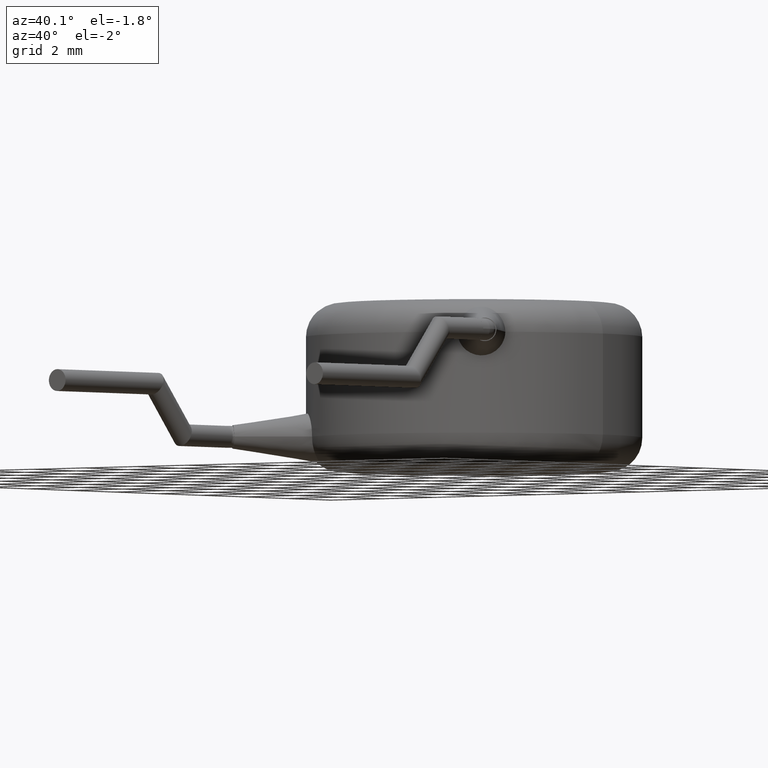
[diagram: clean part render]
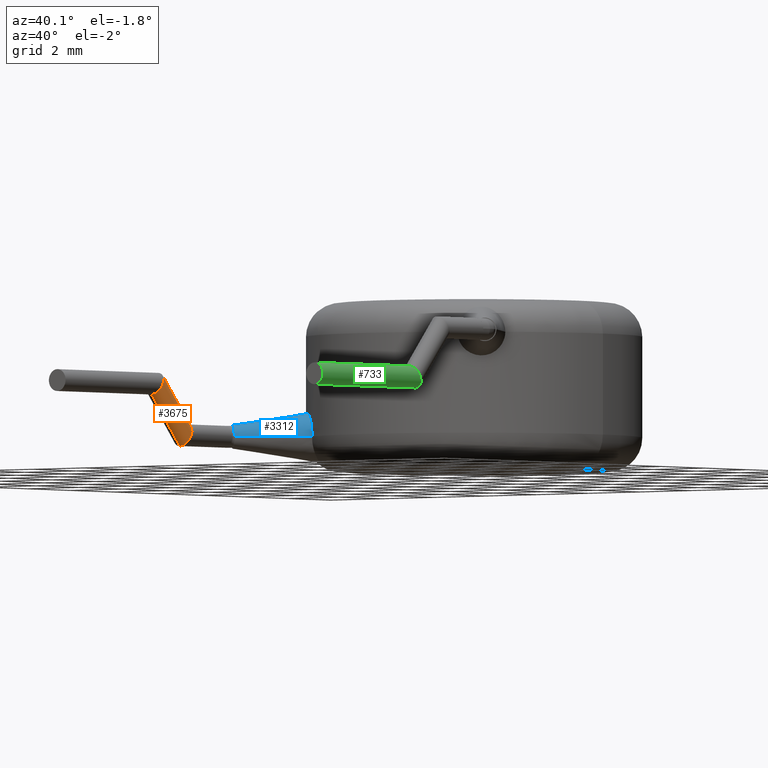
[diagram: same view with three faces highlighted in distinct colors, each labeled with its STEP entity id]
A machine part, auxiliary view with three faces highlighted in distinct colors.
Their STEP definitions:

[orange] entity #3675 — the highlighted cylindrical surface (edge-blend (fillet) strip) has radius 0.325 mm, axis along (0, -0.6549, 0.7557).
#10 = ORIENTED_EDGE ( 'NONE', *, *, #3588, .T. ) ;
#20 = VECTOR ( 'NONE', #952, 1000.000000000000000 ) ;
#30 = CARTESIAN_POINT ( 'NONE',  ( -5.000000000000000000, -8.651595613105618200, 2.824999999999999700 ) ) ;
#101 = CARTESIAN_POINT ( 'NONE',  ( -4.349999999999997000, -7.351595613105617500, 1.325000000000001500 ) ) ;
#182 = CARTESIAN_POINT ( 'NONE',  ( -5.000000000000000900, -7.351595613105617500, 1.324999999999999700 ) ) ;
#184 = CARTESIAN_POINT ( 'NONE',  ( -5.000000000000000900, -7.351595613105617500, 1.324999999999999700 ) ) ;
#297 = EDGE_LOOP ( 'NONE', ( #528, #10, #2083, #2383 ) ) ;
#528 = ORIENTED_EDGE ( 'NONE', *, *, #3630, .T. ) ;
#821 = AXIS2_PLACEMENT_3D ( 'NONE', #1191, #2173, #2827 ) ;
#949 = LINE ( 'NONE', #2413, #20 ) ;
#952 = DIRECTION ( 'NONE',  ( 0.0000000000000000000, -0.6549305384178419900, 0.7556890827898176100 ) ) ;
#1191 = CARTESIAN_POINT ( 'NONE',  ( -5.000000000000000000, -7.500000000000000000, 0.9999999999999997800 ) ) ;
#1245 = EDGE_CURVE ( 'NONE', #2493, #1298, #2808, .T. ) ;
#1298 = VERTEX_POINT ( 'NONE', #3228 ) ;
#1545 = CARTESIAN_POINT ( 'NONE',  ( -5.000000000000000000, -8.948404386894383200, 2.175000000000000300 ) ) ;
#1547 = VERTEX_POINT ( 'NONE', #4108 ) ;
#1744 = CARTESIAN_POINT ( 'NONE',  ( -4.350000000000000500, -8.651595613105618200, 2.824999999999999700 ) ) ;
#1774 =( BOUNDED_CURVE ( )  B_SPLINE_CURVE ( 3, ( #3695, #2015, #101, #184 ),
 .UNSPECIFIED., .F., .T. ) 
 B_SPLINE_CURVE_WITH_KNOTS ( ( 4, 4 ),
 ( 3.141592653589790500, 6.283185307179588900 ),
 .UNSPECIFIED. ) 
 CURVE ( )  GEOMETRIC_REPRESENTATION_ITEM ( )  RATIONAL_B_SPLINE_CURVE ( ( 1.000000000000000000, 0.3333333333333315900, 0.3333333333333315900, 1.000000000000000000 ) ) 
 REPRESENTATION_ITEM ( '' )  );
#1870 = DIRECTION ( 'NONE',  ( 0.0000000000000000000, -0.6549305384178419900, 0.7556890827898176100 ) ) ;
#2000 = VERTEX_POINT ( 'NONE', #182 ) ;
#2015 = CARTESIAN_POINT ( 'NONE',  ( -4.349999999999997000, -7.648404386894384300, 0.6749999999999980500 ) ) ;
#2052 = CARTESIAN_POINT ( 'NONE',  ( -4.350000000000000500, -8.948404386894383200, 2.175000000000000300 ) ) ;
#2083 = ORIENTED_EDGE ( 'NONE', *, *, #2627, .T. ) ;
#2085 = CYLINDRICAL_SURFACE ( 'NONE', #821, 0.3249999999999996200 ) ;
#2173 = DIRECTION ( 'NONE',  ( 0.0000000000000000000, -0.6549305384178419900, 0.7556890827898176100 ) ) ;
#2383 = ORIENTED_EDGE ( 'NONE', *, *, #1245, .F. ) ;
#2413 = CARTESIAN_POINT ( 'NONE',  ( -5.000000000000000000, -7.254401048093309400, 1.212852424985798400 ) ) ;
#2493 = VERTEX_POINT ( 'NONE', #2674 ) ;
#2554 = CARTESIAN_POINT ( 'NONE',  ( -5.000000000000000000, -7.745598951906689700, 0.7871475750142013000 ) ) ;
#2627 = EDGE_CURVE ( 'NONE', #1547, #1298, #3625, .T. ) ;
#2633 = VECTOR ( 'NONE', #1870, 1000.000000000000000 ) ;
#2674 = CARTESIAN_POINT ( 'NONE',  ( -5.000000000000000900, -7.648404386894382500, 0.6750000000000002700 ) ) ;
#2808 = LINE ( 'NONE', #2554, #2633 ) ;
#2827 = DIRECTION ( 'NONE',  ( 0.0000000000000000000, -0.7556890827898171700, -0.6549305384178424300 ) ) ;
#2886 = FACE_OUTER_BOUND ( 'NONE', #297, .T. ) ;
#3228 = CARTESIAN_POINT ( 'NONE',  ( -5.000000000000000000, -8.948404386894383200, 2.175000000000000300 ) ) ;
#3588 = EDGE_CURVE ( 'NONE', #2000, #1547, #949, .T. ) ;
#3625 =( BOUNDED_CURVE ( )  B_SPLINE_CURVE ( 3, ( #30, #1744, #2052, #1545 ),
 .UNSPECIFIED., .F., .F. ) 
 B_SPLINE_CURVE_WITH_KNOTS ( ( 4, 4 ),
 ( 0.0000000000000000000, 3.141592653589793100 ),
 .UNSPECIFIED. ) 
 CURVE ( )  GEOMETRIC_REPRESENTATION_ITEM ( )  RATIONAL_B_SPLINE_CURVE ( ( 1.000000000000000000, 0.3333333333333333700, 0.3333333333333333700, 1.000000000000000000 ) ) 
 REPRESENTATION_ITEM ( '' )  );
#3630 = EDGE_CURVE ( 'NONE', #2493, #2000, #1774, .T. ) ;
#3675 = ADVANCED_FACE ( 'NONE', ( #2886 ), #2085, .T. ) ;
#3695 = CARTESIAN_POINT ( 'NONE',  ( -5.000000000000000900, -7.648404386894382500, 0.6750000000000002700 ) ) ;
#4108 = CARTESIAN_POINT ( 'NONE',  ( -5.000000000000000000, -8.651595613105618200, 2.824999999999999700 ) ) ;

[blue] entity #3312 — the highlighted conical surface has half-angle 9 deg.
#52 = CARTESIAN_POINT ( 'NONE',  ( -3.245470205725447900, -3.808042319663933000, 1.704046203986466600 ) ) ;
#79 = AXIS2_PLACEMENT_3D ( 'NONE', #4172, #3492, #3159 ) ;
#126 = CARTESIAN_POINT ( 'NONE',  ( -4.636825702240936500, -5.566178887444948500, 1.000000000000000000 ) ) ;
#337 = EDGE_CURVE ( 'NONE', #3519, #3705, #564, .T. ) ;
#393 = CARTESIAN_POINT ( 'NONE',  ( -3.449982065002652500, -3.620247165914338300, 1.704203128859561400 ) ) ;
#405 = CONICAL_SURFACE ( 'NONE', #570, 0.3499999999999996400, 0.1570796326794896800 ) ;
#564 = LINE ( 'NONE', #1596, #3932 ) ;
#570 = AXIS2_PLACEMENT_3D ( 'NONE', #4026, #763, #2359 ) ;
#591 = CARTESIAN_POINT ( 'NONE',  ( -3.872187539807325800, -3.163252069715738000, 1.187409554439389000 ) ) ;
#659 = EDGE_CURVE ( 'NONE', #1310, #3705, #1198, .T. ) ;
#721 = ORIENTED_EDGE ( 'NONE', *, *, #659, .T. ) ;
#763 = DIRECTION ( 'NONE',  ( 0.6764222511011238600, 0.7365140448187584800, -0.0000000000000000000 ) ) ;
#879 = CARTESIAN_POINT ( 'NONE',  ( -2.823058014839935600, -4.126783668287933100, 1.000000000000004400 ) ) ;
#897 = CARTESIAN_POINT ( 'NONE',  ( -3.636930563394240600, -3.432224239006246500, 1.616182982446246400 ) ) ;
#904 = ORIENTED_EDGE ( 'NONE', *, *, #1329, .F. ) ;
#927 = LINE ( 'NONE', #126, #3376 ) ;
#1107 = EDGE_CURVE ( 'NONE', #4109, #1310, #927, .T. ) ;
#1123 = CARTESIAN_POINT ( 'NONE',  ( -5.152385533614066500, -5.092683311674163000, 1.000000000000000000 ) ) ;
#1126 = CARTESIAN_POINT ( 'NONE',  ( -2.898455665012673600, -4.074343968432992300, 1.356598134221602000 ) ) ;
#1198 = B_SPLINE_CURVE_WITH_KNOTS ( 'NONE', 3,
 ( #3983, #3369, #3727, #1126, #3762, #4084, #52, #393, #1357, #897, #4162, #2161, #591, #3526 ),
 .UNSPECIFIED., .F., .F.,
 ( 4, 2, 2, 2, 2, 2, 4 ),
 ( 1.971418446124846500E-007, 0.0002772903950009389400, 0.0005543836481572653600, 0.001108570154469918100, 0.001385663407626244500, 0.001662756660782571100, 0.002216943167095223400 ),
 .UNSPECIFIED. ) ;
#1263 = CARTESIAN_POINT ( 'NONE',  ( -3.872187539807324900, -3.163252069715737600, 1.000000000000000000 ) ) ;
#1310 = VERTEX_POINT ( 'NONE', #879 ) ;
#1329 = EDGE_CURVE ( 'NONE', #4109, #3519, #2955, .T. ) ;
#1357 = CARTESIAN_POINT ( 'NONE',  ( -3.516488495328561100, -3.555521876180067800, 1.686195851170330600 ) ) ;
#1596 = CARTESIAN_POINT ( 'NONE',  ( -5.152385533614066500, -5.092683311674163000, 1.000000000000000000 ) ) ;
#1642 = ORIENTED_EDGE ( 'NONE', *, *, #337, .F. ) ;
#2161 = CARTESIAN_POINT ( 'NONE',  ( -3.823711828187557100, -3.224462529883693300, 1.368756977456653700 ) ) ;
#2359 = DIRECTION ( 'NONE',  ( 0.7365140448187587100, -0.6764222511011236400, 0.0000000000000000000 ) ) ;
#2602 = FACE_OUTER_BOUND ( 'NONE', #3653, .T. ) ;
#2661 = DIRECTION ( 'NONE',  ( 0.5528781901358574800, 0.8332620877443655000, -1.915769668878472600E-017 ) ) ;
#2955 = CIRCLE ( 'NONE', #79, 0.3499999999999996400 ) ;
#3081 = CARTESIAN_POINT ( 'NONE',  ( -4.636825702240936500, -5.566178887444948500, 1.000000000000000000 ) ) ;
#3108 = DIRECTION ( 'NONE',  ( 0.7833105513275358000, 0.6216305817597394000, 0.0000000000000000000 ) ) ;
#3159 = DIRECTION ( 'NONE',  ( 0.7365140448187587100, -0.6764222511011236400, 0.0000000000000000000 ) ) ;
#3312 = ADVANCED_FACE ( 'NONE', ( #2602 ), #405, .T. ) ;
#3369 = CARTESIAN_POINT ( 'NONE',  ( -2.823058014839936000, -4.126783668287933100, 1.093701191228053600 ) ) ;
#3376 = VECTOR ( 'NONE', #3108, 1000.000000000000000 ) ;
#3492 = DIRECTION ( 'NONE',  ( -0.6764222511011238600, -0.7365140448187584800, 0.0000000000000000000 ) ) ;
#3519 = VERTEX_POINT ( 'NONE', #1123 ) ;
#3526 = CARTESIAN_POINT ( 'NONE',  ( -3.872187539807324900, -3.163252069715737600, 1.000000000000000000 ) ) ;
#3653 = EDGE_LOOP ( 'NONE', ( #1642, #904, #4146, #721 ) ) ;
#3705 = VERTEX_POINT ( 'NONE', #1263 ) ;
#3727 = CARTESIAN_POINT ( 'NONE',  ( -2.838850521277054300, -4.116096662251186100, 1.185685766845593300 ) ) ;
#3762 = CARTESIAN_POINT ( 'NONE',  ( -2.942265645252920800, -4.043197134341952800, 1.434717504054831900 ) ) ;
#3932 = VECTOR ( 'NONE', #2661, 1000.000000000000100 ) ;
#3983 = CARTESIAN_POINT ( 'NONE',  ( -2.823058014839935600, -4.126783668287933100, 1.000000000000004400 ) ) ;
#4026 = CARTESIAN_POINT ( 'NONE',  ( -4.894605617927501500, -5.329431099559555700, 1.000000000000000000 ) ) ;
#4084 = CARTESIAN_POINT ( 'NONE',  ( -3.101066154131739200, -3.924394155184228500, 1.628651802426326300 ) ) ;
#4109 = VERTEX_POINT ( 'NONE', #3081 ) ;
#4146 = ORIENTED_EDGE ( 'NONE', *, *, #1107, .T. ) ;
#4162 = CARTESIAN_POINT ( 'NONE',  ( -3.690161664362288500, -3.374491010327676000, 1.564997159019383600 ) ) ;
#4172 = CARTESIAN_POINT ( 'NONE',  ( -4.894605617927501500, -5.329431099559555700, 1.000000000000000000 ) ) ;

[green] entity #733 — the highlighted cylindrical surface (edge-blend (fillet) strip) has radius 0.325 mm, axis along (0, -1, -0).
#100 = FACE_OUTER_BOUND ( 'NONE', #2047, .T. ) ;
#152 = VERTEX_POINT ( 'NONE', #1779 ) ;
#192 = CARTESIAN_POINT ( 'NONE',  ( 5.000000000000000000, -8.948404386894383200, 2.824999999999998800 ) ) ;
#232 = EDGE_CURVE ( 'NONE', #152, #971, #2689, .T. ) ;
#248 = DIRECTION ( 'NONE',  ( 0.0000000000000000000, 0.0000000000000000000, -1.000000000000000000 ) ) ;
#261 = DIRECTION ( 'NONE',  ( 0.0000000000000000000, -1.000000000000000000, -9.637352644315597700E-017 ) ) ;
#587 = CYLINDRICAL_SURFACE ( 'NONE', #2367, 0.3249999999999993400 ) ;
#625 = CARTESIAN_POINT ( 'NONE',  ( 5.000000000000000000, -13.29999999999999900, 2.499999999999999100 ) ) ;
#733 = ADVANCED_FACE ( 'NONE', ( #100 ), #587, .T. ) ;
#883 = CARTESIAN_POINT ( 'NONE',  ( 5.649999999999998600, -8.948404386894383200, 2.824999999999998800 ) ) ;
#971 = VERTEX_POINT ( 'NONE', #1402 ) ;
#1259 = DIRECTION ( 'NONE',  ( 0.0000000000000000000, -1.000000000000000000, -9.637352644315597700E-017 ) ) ;
#1402 = CARTESIAN_POINT ( 'NONE',  ( 5.000000000000000000, -8.651595613105618200, 2.175000000000000300 ) ) ;
#1499 = CARTESIAN_POINT ( 'NONE',  ( 5.649999999999998600, -8.651595613105618200, 2.175000000000000300 ) ) ;
#1595 = ORIENTED_EDGE ( 'NONE', *, *, #3812, .T. ) ;
#1701 = AXIS2_PLACEMENT_3D ( 'NONE', #625, #261, #248 ) ;
#1767 = CIRCLE ( 'NONE', #1701, 0.3249999999999993400 ) ;
#1779 = CARTESIAN_POINT ( 'NONE',  ( 5.000000000000000000, -8.948404386894383200, 2.824999999999998800 ) ) ;
#1885 = VECTOR ( 'NONE', #2113, 1000.000000000000000 ) ;
#1980 = CARTESIAN_POINT ( 'NONE',  ( 5.000000000000000000, -13.29999999999999900, 2.824999999999998400 ) ) ;
#2047 = EDGE_LOOP ( 'NONE', ( #3770, #1595, #2692, #2823 ) ) ;
#2113 = DIRECTION ( 'NONE',  ( 0.0000000000000000000, -1.000000000000000000, -9.637352644315597700E-017 ) ) ;
#2367 = AXIS2_PLACEMENT_3D ( 'NONE', #3783, #3794, #2445 ) ;
#2445 = DIRECTION ( 'NONE',  ( 0.0000000000000000000, 0.0000000000000000000, -1.000000000000000000 ) ) ;
#2472 = CARTESIAN_POINT ( 'NONE',  ( 5.000000000000000000, -8.651595613105618200, 2.175000000000000300 ) ) ;
#2629 = VECTOR ( 'NONE', #1259, 1000.000000000000000 ) ;
#2689 =( BOUNDED_CURVE ( )  B_SPLINE_CURVE ( 3, ( #192, #883, #1499, #2472 ),
 .UNSPECIFIED., .F., .F. ) 
 B_SPLINE_CURVE_WITH_KNOTS ( ( 4, 4 ),
 ( 3.141592653589793100, 6.283185307179586200 ),
 .UNSPECIFIED. ) 
 CURVE ( )  GEOMETRIC_REPRESENTATION_ITEM ( )  RATIONAL_B_SPLINE_CURVE ( ( 1.000000000000000000, 0.3333333333333333700, 0.3333333333333333700, 1.000000000000000000 ) ) 
 REPRESENTATION_ITEM ( '' )  );
#2692 = ORIENTED_EDGE ( 'NONE', *, *, #3837, .F. ) ;
#2757 = CARTESIAN_POINT ( 'NONE',  ( 5.000000000000000000, -13.29999999999999900, 2.174999999999999800 ) ) ;
#2823 = ORIENTED_EDGE ( 'NONE', *, *, #3025, .F. ) ;
#3025 = EDGE_CURVE ( 'NONE', #971, #3391, #3505, .T. ) ;
#3122 = CARTESIAN_POINT ( 'NONE',  ( 5.000000000000000000, -8.800000000000000700, 2.175000000000000300 ) ) ;
#3182 = CARTESIAN_POINT ( 'NONE',  ( 5.000000000000000000, -8.800000000000000700, 2.824999999999998800 ) ) ;
#3344 = VERTEX_POINT ( 'NONE', #1980 ) ;
#3391 = VERTEX_POINT ( 'NONE', #2757 ) ;
#3505 = LINE ( 'NONE', #3122, #1885 ) ;
#3537 = LINE ( 'NONE', #3182, #2629 ) ;
#3770 = ORIENTED_EDGE ( 'NONE', *, *, #232, .F. ) ;
#3783 = CARTESIAN_POINT ( 'NONE',  ( 5.000000000000000000, -8.800000000000000700, 2.499999999999999600 ) ) ;
#3794 = DIRECTION ( 'NONE',  ( 0.0000000000000000000, -1.000000000000000000, -9.637352644315597700E-017 ) ) ;
#3812 = EDGE_CURVE ( 'NONE', #152, #3344, #3537, .T. ) ;
#3837 = EDGE_CURVE ( 'NONE', #3391, #3344, #1767, .T. ) ;